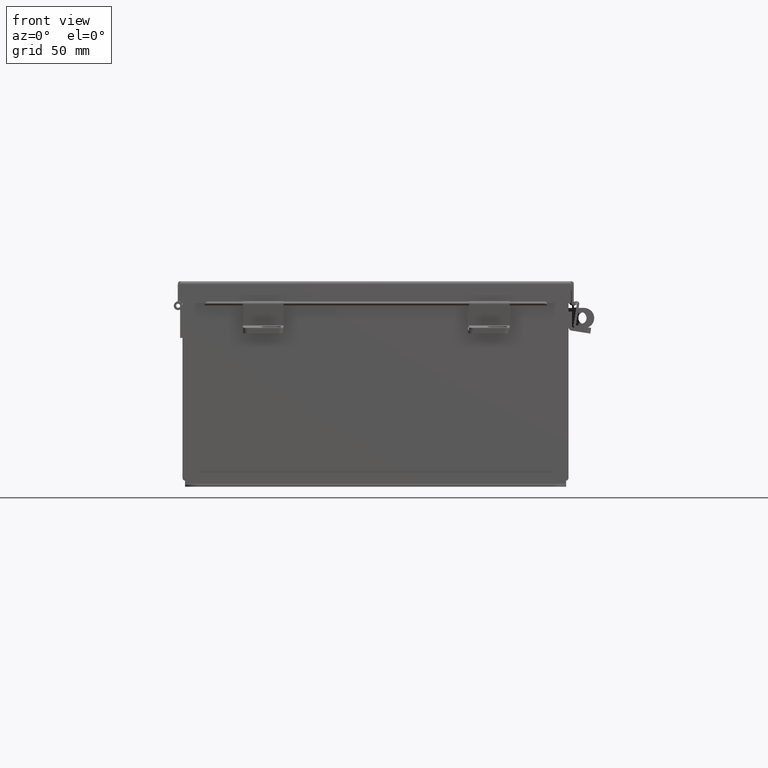
[diagram: clean part render]
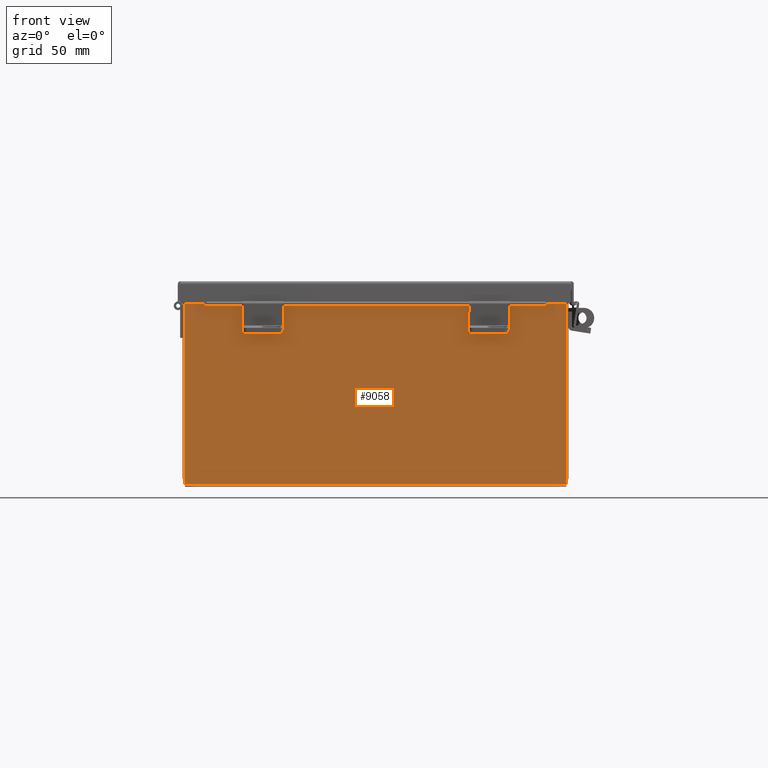
[diagram: same view with one face highlighted and labeled with its STEP entity id]
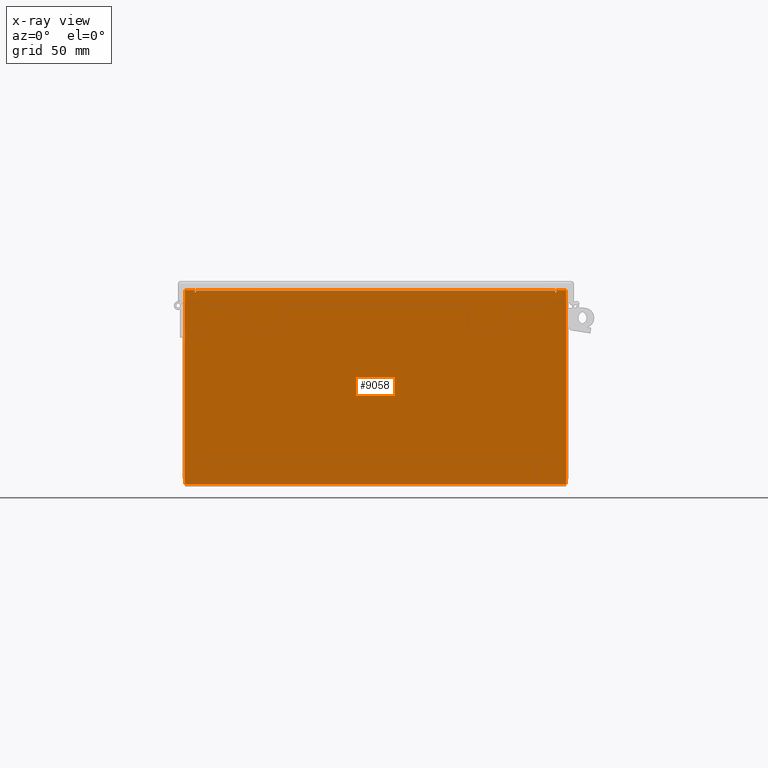
[diagram: x-ray of the same camera — body ghosted, the highlighted face saturated]
A machine part, front view. The second image highlights one B-rep face of the part: STEP entity #9058.
The next image is the same camera in x-ray: the body ghosted, the highlighted face saturated — about 0% of this face is hidden behind the body in this view.
In plain terms, the highlighted planar face has unit normal (-0, 1, -0).
Its self-contained STEP definition (entity closure, byte-faithful):
#80 = EDGE_CURVE ( 'NONE', #15184, #14083, #15851, .T. ) ;
#376 = CARTESIAN_POINT ( 'NONE',  ( -5.925299999999991100, -8.741913579725642300E-015, -3.099299999999995500 ) ) ;
#709 = DIRECTION ( 'NONE',  ( 0.0000000000000000000, 0.0000000000000000000, 1.000000000000000000 ) ) ;
#1584 = ORIENTED_EDGE ( 'NONE', *, *, #8108, .F. ) ;
#1586 = ORIENTED_EDGE ( 'NONE', *, *, #1811, .F. ) ;
#1811 = EDGE_CURVE ( 'NONE', #14083, #12927, #17182, .T. ) ;
#2050 = CARTESIAN_POINT ( 'NONE',  ( 5.925300000000008000, 8.741913579725642300E-015, 2.925299999999999100 ) ) ;
#2411 = LINE ( 'NONE', #5379, #13803 ) ;
#2525 = EDGE_LOOP ( 'NONE', ( #1584, #1586, #8339, #8902, #13050, #6000, #11812, #13321, #9923, #15925, #9318, #17881 ) ) ;
#2648 = LINE ( 'NONE', #9954, #10381 ) ;
#2690 = CARTESIAN_POINT ( 'NONE',  ( -5.582299999999991200, 0.0000000000000000000, 2.874949999999998800 ) ) ;
#3035 = CARTESIAN_POINT ( 'NONE',  ( -5.582300000000000000, 0.0000000000000000000, 4.370956789862821100E-015 ) ) ;
#3170 = CARTESIAN_POINT ( 'NONE',  ( 5.582300000000008000, 8.741913579725642300E-015, 2.874949999999999700 ) ) ;
#3855 = DIRECTION ( 'NONE',  ( 4.910036603141682400E-031, 1.000000000000000000, -0.0000000000000000000 ) ) ;
#4198 = VECTOR ( 'NONE', #14292, 39.37007874015748100 ) ;
#4246 = VERTEX_POINT ( 'NONE', #376 ) ;
#4689 = LINE ( 'NONE', #12714, #4198 ) ;
#4730 = CARTESIAN_POINT ( 'NONE',  ( -5.582299999999991200, 2.185478394931410600E-015, 2.912300000000000100 ) ) ;
#5083 = DIRECTION ( 'NONE',  ( 1.000000000000000000, 4.910036603141682400E-031, -0.0000000000000000000 ) ) ;
#5379 = CARTESIAN_POINT ( 'NONE',  ( 5.582299999999999200, 0.0000000000000000000, 0.0000000000000000000 ) ) ;
#5839 = DIRECTION ( 'NONE',  ( 1.000000000000000000, 4.910036603141682400E-031, 0.0000000000000000000 ) ) ;
#5901 = CARTESIAN_POINT ( 'NONE',  ( -5.925299999999992900, 0.0000000000000000000, 2.925300000000001300 ) ) ;
#5955 = CARTESIAN_POINT ( 'NONE',  ( -5.925299999999992900, -8.741913579725642300E-015, -3.099299999999995500 ) ) ;
#5962 = VERTEX_POINT ( 'NONE', #8744 ) ;
#6000 = ORIENTED_EDGE ( 'NONE', *, *, #8859, .F. ) ;
#6527 = VECTOR ( 'NONE', #18402, 39.37007874015748100 ) ;
#7294 = CARTESIAN_POINT ( 'NONE',  ( -5.619649999999991200, 0.0000000000000000000, 2.925300000000000000 ) ) ;
#7646 = DIRECTION ( 'NONE',  ( 0.0000000000000000000, 0.0000000000000000000, -1.000000000000000000 ) ) ;
#7699 = CARTESIAN_POINT ( 'NONE',  ( 5.619650000000008900, 8.741913579725642300E-015, 2.925300000000000000 ) ) ;
#7735 = VECTOR ( 'NONE', #15943, 39.37007874015748100 ) ;
#7974 = CARTESIAN_POINT ( 'NONE',  ( 5.925300000000008000, 0.0000000000000000000, -3.099299999999999900 ) ) ;
#8108 = EDGE_CURVE ( 'NONE', #12927, #17948, #16284, .T. ) ;
#8339 = ORIENTED_EDGE ( 'NONE', *, *, #80, .F. ) ;
#8701 = DIRECTION ( 'NONE',  ( 4.910036603141682400E-031, 1.000000000000000000, -0.0000000000000000000 ) ) ;
#8744 = CARTESIAN_POINT ( 'NONE',  ( -5.925299999999992900, 0.0000000000000000000, 2.925300000000001300 ) ) ;
#8780 = EDGE_CURVE ( 'NONE', #19086, #12328, #2411, .T. ) ;
#8859 = EDGE_CURVE ( 'NONE', #12201, #19086, #9190, .T. ) ;
#8902 = ORIENTED_EDGE ( 'NONE', *, *, #11659, .T. ) ;
#9058 = ADVANCED_FACE ( 'NONE', ( #18208 ), #13774, .F. ) ;
#9190 = CIRCLE ( 'NONE', #19158, 0.01867500000000003900 ) ;
#9318 = ORIENTED_EDGE ( 'NONE', *, *, #17659, .T. ) ;
#9643 = CARTESIAN_POINT ( 'NONE',  ( -5.619649999999991200, 0.0000000000000000000, 2.874949999999998800 ) ) ;
#9794 = VECTOR ( 'NONE', #10365, 39.37007874015748100 ) ;
#9923 = ORIENTED_EDGE ( 'NONE', *, *, #18836, .T. ) ;
#9954 = CARTESIAN_POINT ( 'NONE',  ( 5.619649999999937000, 0.0000000000000000000, -1.218404205174261500E-013 ) ) ;
#10123 = LINE ( 'NONE', #14373, #17921 ) ;
#10365 = DIRECTION ( 'NONE',  ( 0.0000000000000000000, 0.0000000000000000000, -1.000000000000000000 ) ) ;
#10381 = VECTOR ( 'NONE', #11488, 39.37007874015748100 ) ;
#10999 = VERTEX_POINT ( 'NONE', #2050 ) ;
#11488 = DIRECTION ( 'NONE',  ( -2.170286390199955400E-014, -7.888609052210118100E-031, -1.000000000000000000 ) ) ;
#11659 = EDGE_CURVE ( 'NONE', #15184, #12328, #10123, .T. ) ;
#11812 = ORIENTED_EDGE ( 'NONE', *, *, #17736, .F. ) ;
#12032 = CARTESIAN_POINT ( 'NONE',  ( -5.600974999999991200, 0.0000000000000000000, 2.874949999999998800 ) ) ;
#12106 = VECTOR ( 'NONE', #19357, 39.37007874015748100 ) ;
#12175 = CARTESIAN_POINT ( 'NONE',  ( 0.0000000000000000000, 0.0000000000000000000, 0.0000000000000000000 ) ) ;
#12201 = VERTEX_POINT ( 'NONE', #19139 ) ;
#12328 = VERTEX_POINT ( 'NONE', #17813 ) ;
#12674 = LINE ( 'NONE', #5901, #16834 ) ;
#12714 = CARTESIAN_POINT ( 'NONE',  ( -5.925299999999992900, 0.0000000000000000000, 2.925300000000001300 ) ) ;
#12861 = CARTESIAN_POINT ( 'NONE',  ( -5.925299999999992900, 0.0000000000000000000, 2.925300000000001300 ) ) ;
#12927 = VERTEX_POINT ( 'NONE', #9643 ) ;
#13050 = ORIENTED_EDGE ( 'NONE', *, *, #8780, .F. ) ;
#13321 = ORIENTED_EDGE ( 'NONE', *, *, #15006, .T. ) ;
#13728 = EDGE_CURVE ( 'NONE', #5962, #17948, #4689, .T. ) ;
#13774 = PLANE ( 'NONE',  #17698 ) ;
#13803 = VECTOR ( 'NONE', #709, 39.37007874015748100 ) ;
#14083 = VERTEX_POINT ( 'NONE', #2690 ) ;
#14292 = DIRECTION ( 'NONE',  ( 1.000000000000000000, 4.910036603141682400E-031, 0.0000000000000000000 ) ) ;
#14373 = CARTESIAN_POINT ( 'NONE',  ( -5.582299999999992900, 2.185478394931410600E-015, 2.912300000000000100 ) ) ;
#15006 = EDGE_CURVE ( 'NONE', #18073, #10999, #12674, .T. ) ;
#15184 = VERTEX_POINT ( 'NONE', #4730 ) ;
#15288 = DIRECTION ( 'NONE',  ( -4.910036603141682400E-031, -1.000000000000000000, -0.0000000000000000000 ) ) ;
#15353 = DIRECTION ( 'NONE',  ( 0.0000000000000000000, 0.0000000000000000000, -1.000000000000000000 ) ) ;
#15360 = VECTOR ( 'NONE', #7646, 39.37007874015748100 ) ;
#15851 = LINE ( 'NONE', #3035, #15360 ) ;
#15925 = ORIENTED_EDGE ( 'NONE', *, *, #17486, .F. ) ;
#15943 = DIRECTION ( 'NONE',  ( 0.0000000000000000000, 0.0000000000000000000, 1.000000000000000000 ) ) ;
#16007 = LINE ( 'NONE', #12861, #7735 ) ;
#16154 = VERTEX_POINT ( 'NONE', #7974 ) ;
#16217 = CARTESIAN_POINT ( 'NONE',  ( -5.619650000000000000, 0.0000000000000000000, 4.370956789862821100E-015 ) ) ;
#16236 = DIRECTION ( 'NONE',  ( 0.0000000000000000000, 0.0000000000000000000, -1.000000000000000000 ) ) ;
#16284 = LINE ( 'NONE', #16217, #12106 ) ;
#16834 = VECTOR ( 'NONE', #5839, 39.37007874015748100 ) ;
#17182 = CIRCLE ( 'NONE', #17190, 0.01867500000000003900 ) ;
#17190 = AXIS2_PLACEMENT_3D ( 'NONE', #12032, #3855, #16236 ) ;
#17486 = EDGE_CURVE ( 'NONE', #4246, #16154, #19444, .T. ) ;
#17659 = EDGE_CURVE ( 'NONE', #4246, #5962, #16007, .T. ) ;
#17698 = AXIS2_PLACEMENT_3D ( 'NONE', #12175, #15288, #15353 ) ;
#17736 = EDGE_CURVE ( 'NONE', #18073, #12201, #2648, .T. ) ;
#17813 = CARTESIAN_POINT ( 'NONE',  ( 5.582300000000008000, 8.741913579725642300E-015, 2.912299999999998800 ) ) ;
#17881 = ORIENTED_EDGE ( 'NONE', *, *, #13728, .T. ) ;
#17921 = VECTOR ( 'NONE', #5083, 39.37007874015748100 ) ;
#17948 = VERTEX_POINT ( 'NONE', #7294 ) ;
#18017 = CARTESIAN_POINT ( 'NONE',  ( 5.600975000000007100, 8.741913579725642300E-015, 2.874949999999999700 ) ) ;
#18064 = LINE ( 'NONE', #19712, #9794 ) ;
#18073 = VERTEX_POINT ( 'NONE', #7699 ) ;
#18208 = FACE_OUTER_BOUND ( 'NONE', #2525, .T. ) ;
#18402 = DIRECTION ( 'NONE',  ( 1.000000000000000000, 4.910036603141682400E-031, -0.0000000000000000000 ) ) ;
#18836 = EDGE_CURVE ( 'NONE', #10999, #16154, #18064, .T. ) ;
#19086 = VERTEX_POINT ( 'NONE', #3170 ) ;
#19139 = CARTESIAN_POINT ( 'NONE',  ( 5.619650000000007100, 8.741913579725642300E-015, 2.874949999999998800 ) ) ;
#19158 = AXIS2_PLACEMENT_3D ( 'NONE', #18017, #8701, #19592 ) ;
#19357 = DIRECTION ( 'NONE',  ( 0.0000000000000000000, 0.0000000000000000000, 1.000000000000000000 ) ) ;
#19444 = LINE ( 'NONE', #5955, #6527 ) ;
#19592 = DIRECTION ( 'NONE',  ( 0.0000000000000000000, 0.0000000000000000000, -1.000000000000000000 ) ) ;
#19712 = CARTESIAN_POINT ( 'NONE',  ( 5.925300000000008000, 8.741913579725642300E-015, 2.925299999999999100 ) ) ;